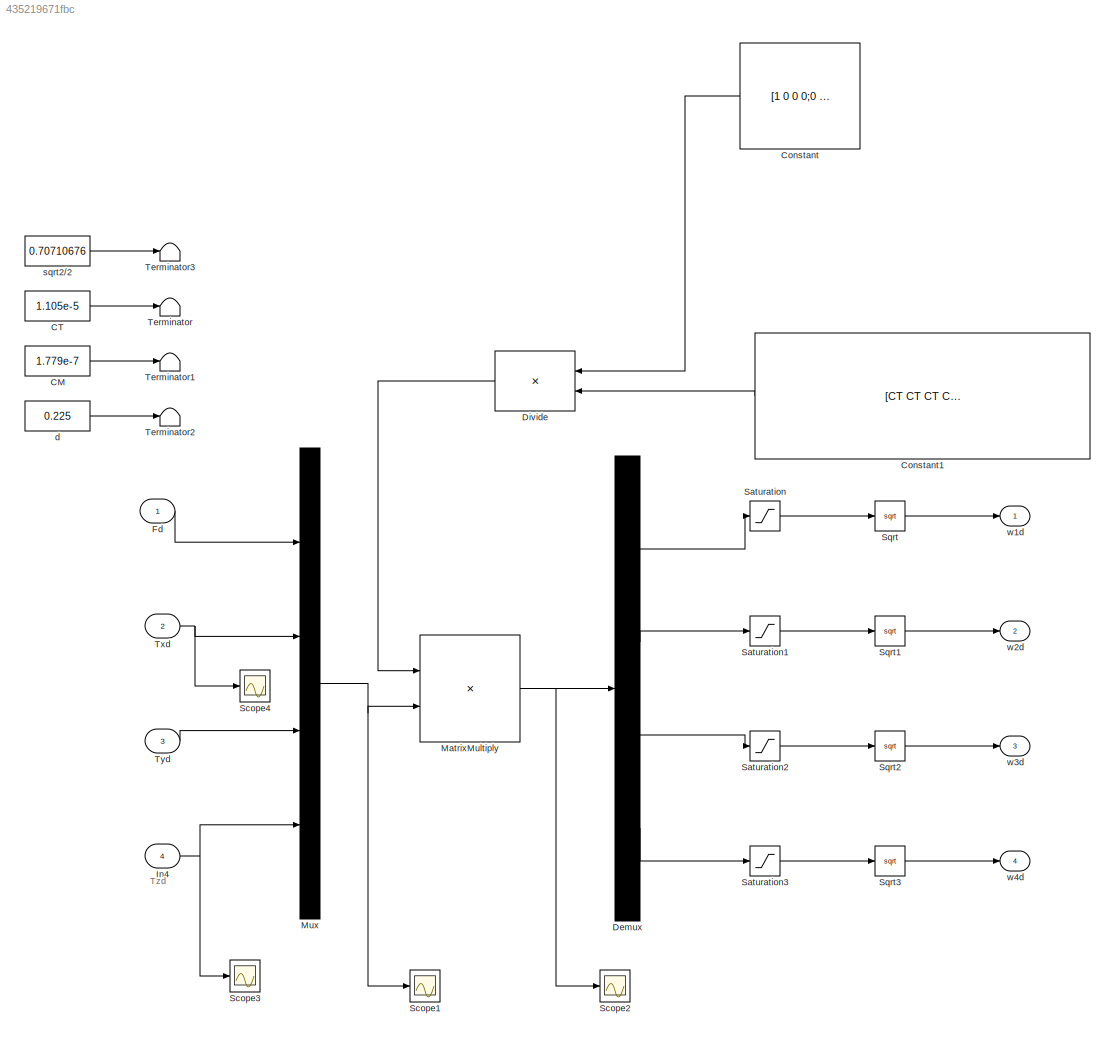
MODEL slx_435219671fbc
KIND model
CONFIG AbsTol = auto
CONFIG EnableMultiTasking = off
CONFIG FixedStep = auto
CONFIG MaxStep = auto
CONFIG MinStep = auto
CONFIG RelTol = 1e-3
CONFIG SampleTimeConstraint = Unconstrained
CONFIG SolverName = VariableStepAuto
CONFIG StartTime = 0.0
CONFIG StopTime = 10.0
WORKSPACE source: mxarray member
WORKSPACE CM = 1.779e-07
WORKSPACE CR = 1148
WORKSPACE CT = 1.105e-05
WORKSPACE J = [0.0211 0 0 0 0.0219 0 0 0 0.0366]
WORKSPACE JPR = 0.0001287
WORKSPACE Tm = 0.05
WORKSPACE d = 0.225
WORKSPACE m = 1.4
WORKSPACE sqrt22 = 0.70710678
WORKSPACE wb = -141.4
BLOCK [Constant] CM
  Value = 1.779e-7
BLOCK [Constant] CT
  Value = 1.105e-5
BLOCK [Constant] Constant
  NameLocation = top
  Value = [1 0 0 0;0 1 0 0;0 0 1 0;0 0 0 1]
BLOCK [Constant] Constant1
  NameLocation = top
  Value = [CT CT CT CT;sqrt22*d*CT sqrt22*d*CT -sqrt22*d*CT -sqrt22*d*CT;sqrt22*d*CT -sqrt22*d*CT -sqrt22*d*CT sqrt22*d*CT;CM -CM CM -CM]
BLOCK [Demux] Demux
  Ports = [1, 4]
BLOCK [Product] Divide
  Inputs = */
  Multiplication = Matrix(*)
  NameLocation = top
  Ports = [2, 1]
BLOCK [Inport] Fd
BLOCK [Inport] In4
  Port = 4
BLOCK [Product] MatrixMultiply
  Multiplication = Matrix(*)
  Ports = [2, 1]
BLOCK [Mux] Mux
  DisplayOption = bar
  Ports = [4, 1]
BLOCK [Saturate] Saturation
BLOCK [Saturate] Saturation1
BLOCK [Saturate] Saturation2
BLOCK [Saturate] Saturation3
BLOCK [Scope] Scope1
  Floating = off
  NumInputPorts = 1
  Ports = [1]
  ScopeSpecificationString = Simulink.scopes.TimeScopeBlockCfg('CurrentConfiguration', extmgr.ConfigurationSet(extmgr.Configuration('Core','General UI',true),extmgr.Configuration('Core','Source UI',true),extmgr.Configuration('Sources','WiredSimulink',true,'DataLoggingVariableName','ScopeData1'),extmgr.Configuration('Visuals','Time Domain',true,'SerializedDisplays',{struct('MinYLimReal','-1.00000','MaxYLimReal','1.00000','YLab...<+1379ch>
BLOCK [Scope] Scope2
  Floating = off
  NumInputPorts = 1
  Ports = [1]
  ScopeSpecificationString = Simulink.scopes.TimeScopeBlockCfg('CurrentConfiguration', extmgr.ConfigurationSet(extmgr.Configuration('Core','General UI',true),extmgr.Configuration('Core','Source UI',true),extmgr.Configuration('Sources','WiredSimulink',true,'DataLoggingVariableName','ScopeData2'),extmgr.Configuration('Visuals','Time Domain',true,'SerializedDisplays',{struct('MinYLimReal','-1.00000','MaxYLimReal','1.00000','YLab...<+1432ch>
BLOCK [Scope] Scope3
  Floating = off
  NumInputPorts = 1
  Ports = [1]
  ScopeSpecificationString = Simulink.scopes.TimeScopeBlockCfg('CurrentConfiguration', extmgr.ConfigurationSet(extmgr.Configuration('Core','General UI',true),extmgr.Configuration('Core','Source UI',true),extmgr.Configuration('Sources','WiredSimulink',true,'DataLoggingVariableName','ScopeData3'),extmgr.Configuration('Visuals','Time Domain',true,'SerializedDisplays',{struct('MinYLimReal','-1.00000','MaxYLimReal','1.00000','YLab...<+1362ch>
BLOCK [Scope] Scope4
  Floating = off
  NumInputPorts = 1
  Ports = [1]
  ScopeSpecificationString = Simulink.scopes.TimeScopeBlockCfg('CurrentConfiguration', extmgr.ConfigurationSet(extmgr.Configuration('Core','General UI',true),extmgr.Configuration('Core','Source UI',true),extmgr.Configuration('Sources','WiredSimulink',true,'DataLoggingVariableName','ScopeData4'),extmgr.Configuration('Visuals','Time Domain',true,'SerializedDisplays',{struct('MinYLimReal','-1.00000','MaxYLimReal','1.00000','YLab...<+1362ch>
BLOCK [Sqrt] Sqrt
BLOCK [Sqrt] Sqrt1
BLOCK [Sqrt] Sqrt2
BLOCK [Sqrt] Sqrt3
BLOCK [Terminator] Terminator
BLOCK [Terminator] Terminator1
BLOCK [Terminator] Terminator2
BLOCK [Terminator] Terminator3
BLOCK [Inport] Txd
  Port = 2
BLOCK [Inport] Tyd
  Port = 3
BLOCK [Constant] d
  Value = 0.225
BLOCK [Constant] sqrt2//2
  Value = 0.70710676
BLOCK [Outport] w1d
BLOCK [Outport] w2d
  Port = 2
BLOCK [Outport] w3d
  Port = 3
BLOCK [Outport] w4d
  Port = 4
ANNOTATION (root): Tzd
LINE CM:1 -> Terminator1:1
LINE CT:1 -> Terminator:1
LINE Constant1:1 -> Divide:2
LINE Constant:1 -> Divide:1
LINE Demux:1 -> Saturation:1
LINE Demux:2 -> Saturation1:1
LINE Demux:3 -> Saturation2:1
LINE Demux:4 -> Saturation3:1
LINE Divide:1 -> MatrixMultiply:1
LINE Fd:1 -> Mux:1
NET In4:1 -> Mux:4, Scope3:1
NET MatrixMultiply:1 -> Demux:1, Scope2:1
NET Mux:1 -> MatrixMultiply:2, Scope1:1
LINE Saturation1:1 -> Sqrt1:1
LINE Saturation2:1 -> Sqrt2:1
LINE Saturation3:1 -> Sqrt3:1
LINE Saturation:1 -> Sqrt:1
LINE Sqrt1:1 -> w2d:1
LINE Sqrt2:1 -> w3d:1
LINE Sqrt3:1 -> w4d:1
LINE Sqrt:1 -> w1d:1
NET Txd:1 -> Mux:2, Scope4:1
LINE Tyd:1 -> Mux:3
LINE d:1 -> Terminator2:1
LINE sqrt2//2:1 -> Terminator3:1
note: NET lines group one-source signal fan-out (src -> all destinations, sorted); 1:1 wires keep LINE
